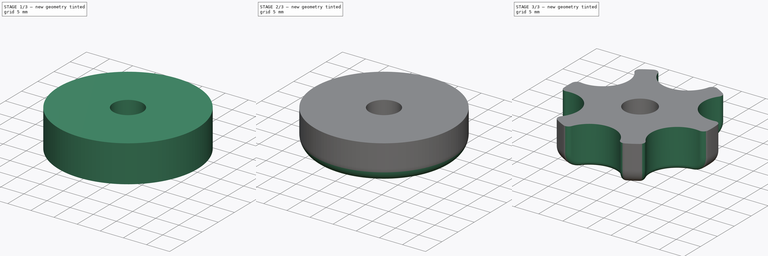
[diagram: build sequence overview — one tinted view per stage of 3, left to right]
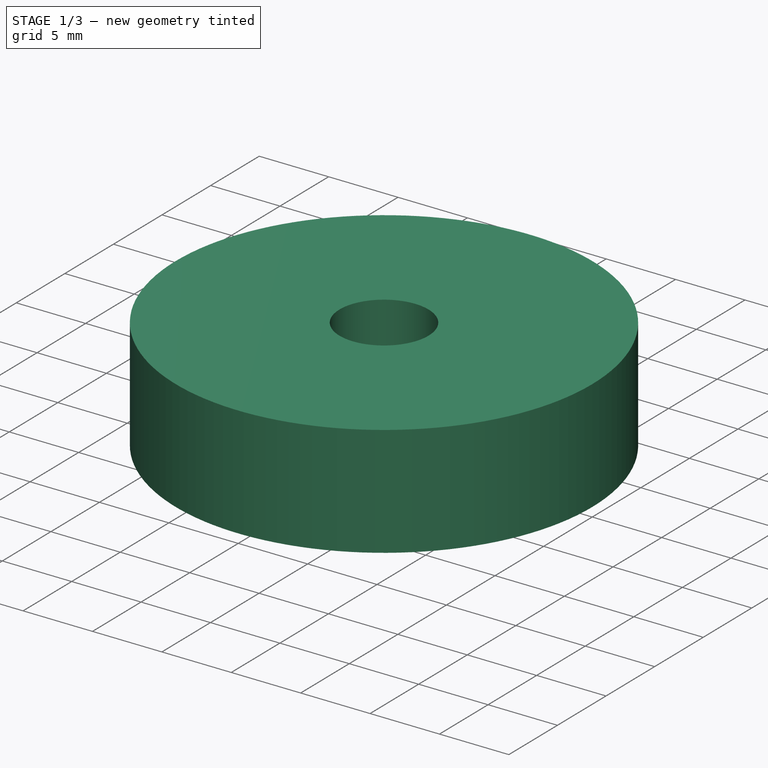
[diagram: stage 1 of 3 — iso view after this stage's code; geometry added in this stage tinted green]
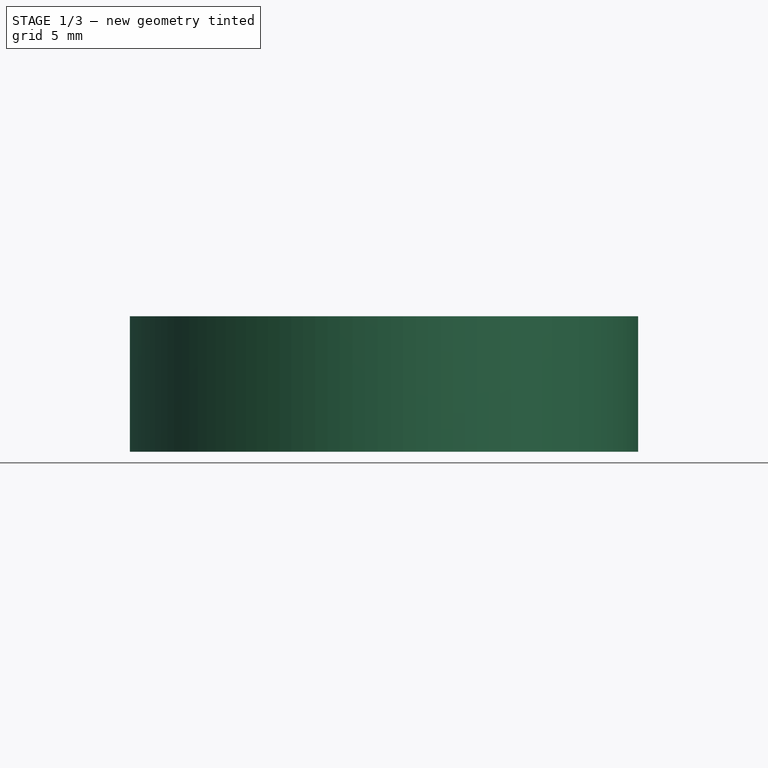
[diagram: stage 1 of 3 — front view after this stage's code; geometry added in this stage tinted green]
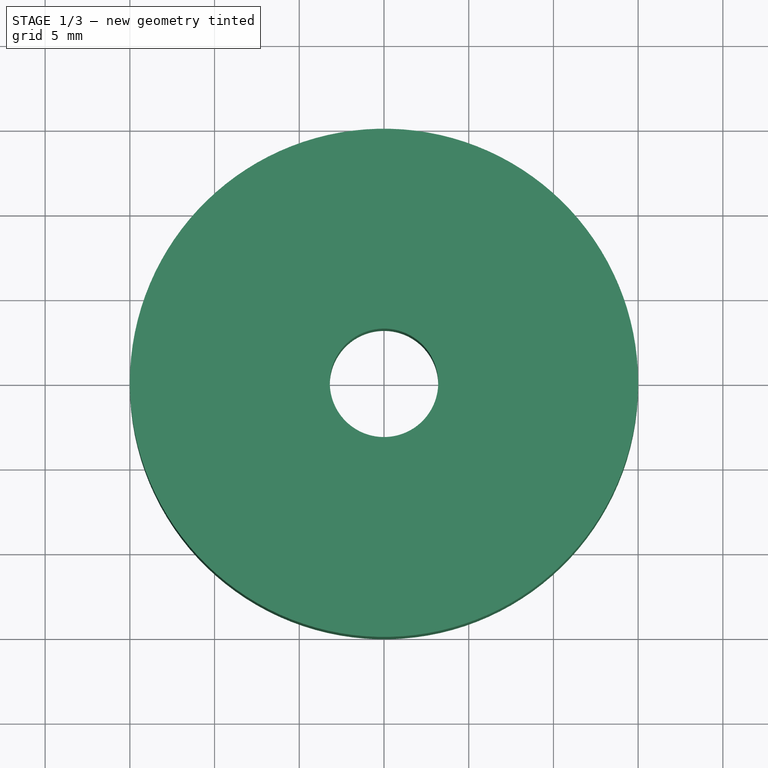
[diagram: stage 1 of 3 — top view after this stage's code; geometry added in this stage tinted green]
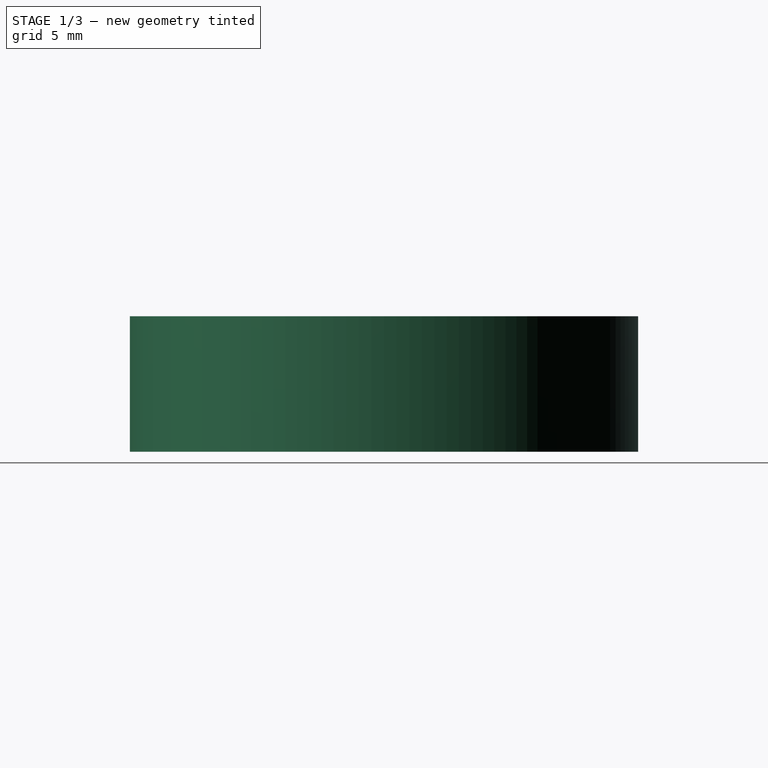
[diagram: stage 1 of 3 — right view after this stage's code; geometry added in this stage tinted green]
FCSTD DOCUMENT  (FreeCAD 0.16R6712 (Git))
Label: Гайка
License: All rights reserved
LicenseURL: http://en.wikipedia.org/wiki/All_rights_reserved
objects: Sketcher::SketchObject×3, PartDesign::Pocket×3, PartDesign::Fillet×2, Part::Cylinder×1
note: 12 computed .brp shape members not serialized (recipe doc carries the construction recipe); baked Part::Feature solids carry a one-line shape summary decoded from their .brp

FEATURE [Part::Cylinder] Cylinder  label="Цилиндр"
  Angle = 360
  Height = 8
  Radius = 15
FEATURE [Sketcher::SketchObject] Sketch
  Placement = pos=(0,0,0) rot=(1,0,0;3.14159rad)
  Support = -> Cylinder [Face3]
  sketch-geometry (1):
    g0: Circle CenterX=0 CenterY=0 CenterZ=0 NormalX=0 NormalY=0 NormalZ=1 Radius=3.2
  constraints (2):
    c: Coincident(g0,g-1)
    c: Radius(g0) = 3.2
FEATURE [PartDesign::Pocket] Pocket
  Length = 6
  Sketch = -> Sketch
  Type = 1
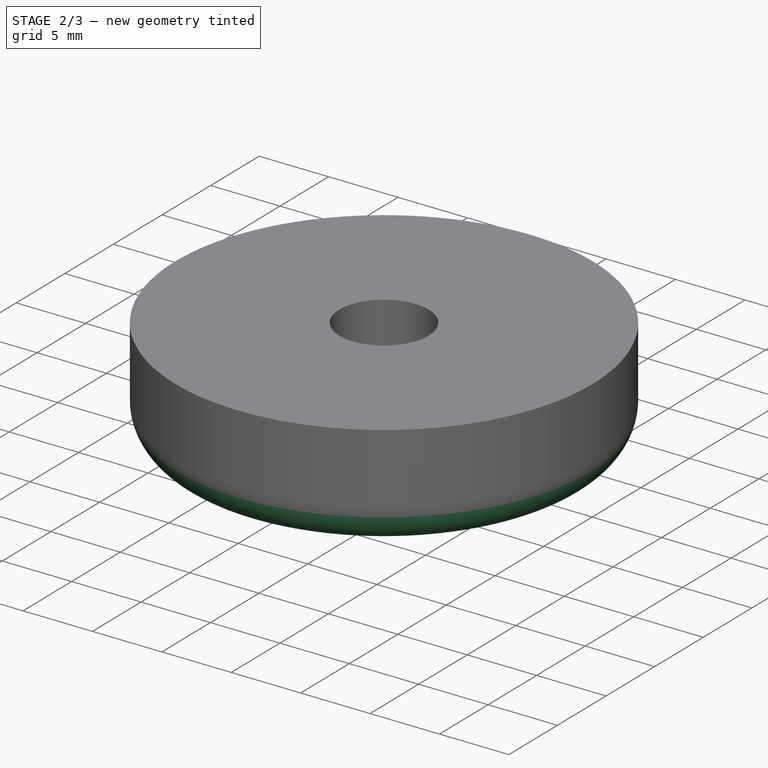
[diagram: stage 2 of 3 — iso view after this stage's code; geometry added in this stage tinted green]
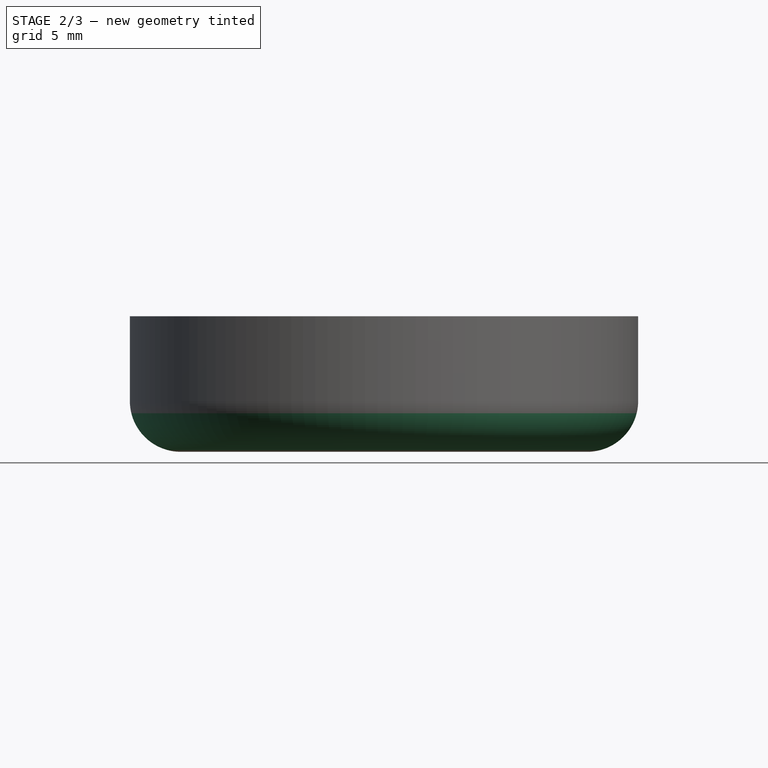
[diagram: stage 2 of 3 — front view after this stage's code; geometry added in this stage tinted green]
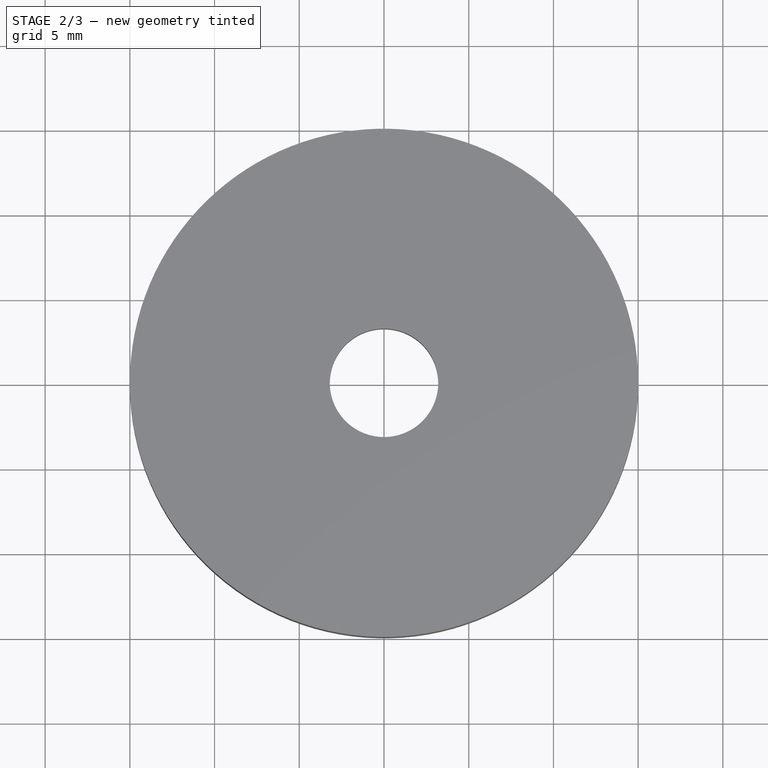
[diagram: stage 2 of 3 — top view after this stage's code; geometry added in this stage tinted green]
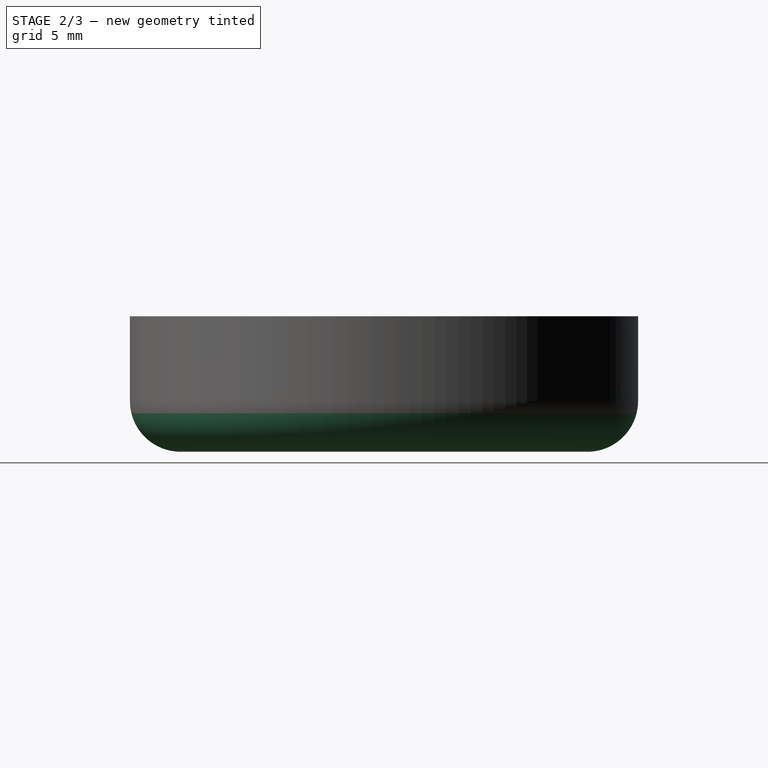
[diagram: stage 2 of 3 — right view after this stage's code; geometry added in this stage tinted green]
FEATURE [PartDesign::Fillet] Fillet
  Base = -> Pocket [Edge3]
  Radius = 3
FEATURE [Sketcher::SketchObject] Sketch001
  Placement = pos=(0,0,0) rot=(1,0,0;3.14159rad)
  Support = -> Fillet [Face4]
  sketch-geometry (7):
    g0: LineSegment StartX=6.35085 StartY=-0.0475035 StartZ=0 EndX=3.21657 EndY=5.47625 EndZ=0
    g1: LineSegment StartX=3.21657 StartY=5.47625 StartZ=0 EndX=-3.13429 EndY=5.52375 EndZ=0
    g2: LineSegment StartX=-3.13429 StartY=5.52375 StartZ=0 EndX=-6.35085 EndY=0.0475035 EndZ=0
    g3: LineSegment StartX=-6.35085 StartY=0.0475035 StartZ=0 EndX=-3.21657 EndY=-5.47625 EndZ=0
    g4: LineSegment StartX=-3.21657 StartY=-5.47625 StartZ=0 EndX=3.13429 EndY=-5.52375 EndZ=0
    g5: LineSegment StartX=3.13429 StartY=-5.52375 StartZ=0 EndX=6.35085 EndY=-0.0475035 EndZ=0
    g6: Circle [constr] CenterX=0 CenterY=0 CenterZ=0 NormalX=0 NormalY=0 NormalZ=1 Radius=6.35103
  constraints (15):
    c: Coincident(g0,g1)
    c: Coincident(g1,g2)
    c: Coincident(g2,g3)
    c: Coincident(g3,g4)
    c: Coincident(g4,g5)
    c: Coincident(g5,g0)
    c: Equal(g0, g1-g5) x5
    c: PointOnObject(g0,g6)
    c: PointOnObject(g1,g6)
    c: PointOnObject(g2,g6)
    c: PointOnObject(g3,g6)
    c: PointOnObject(g4,g6)
    c: PointOnObject(g5,g6)
    c: Coincident(g6,g-1)
    c: DistanceY(g3,g1) = 11
FEATURE [PartDesign::Pocket] Pocket001
  Length = 5
  Sketch = -> Sketch001
  Type = 0
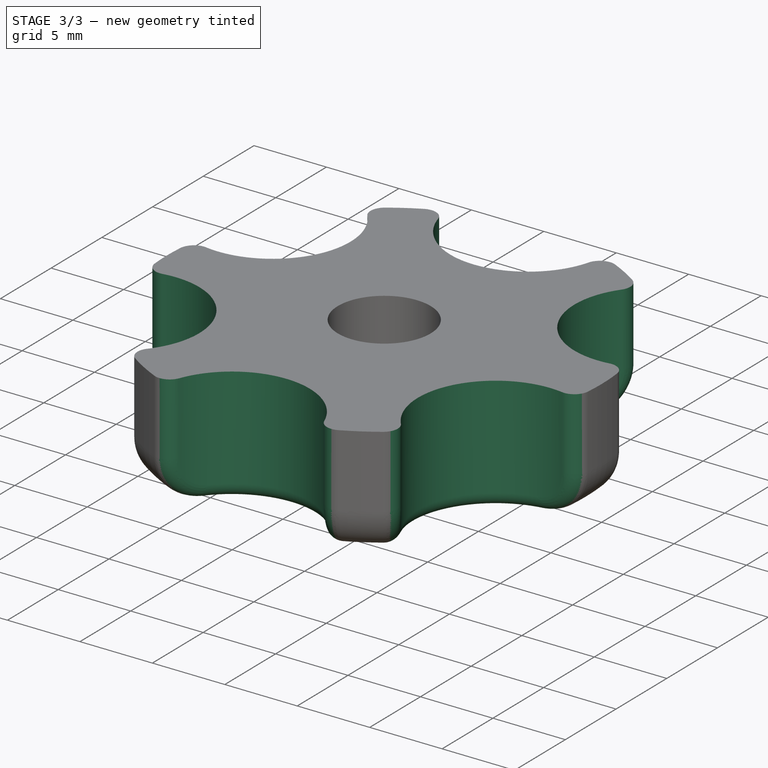
[diagram: stage 3 of 3 — iso view after this stage's code; geometry added in this stage tinted green]
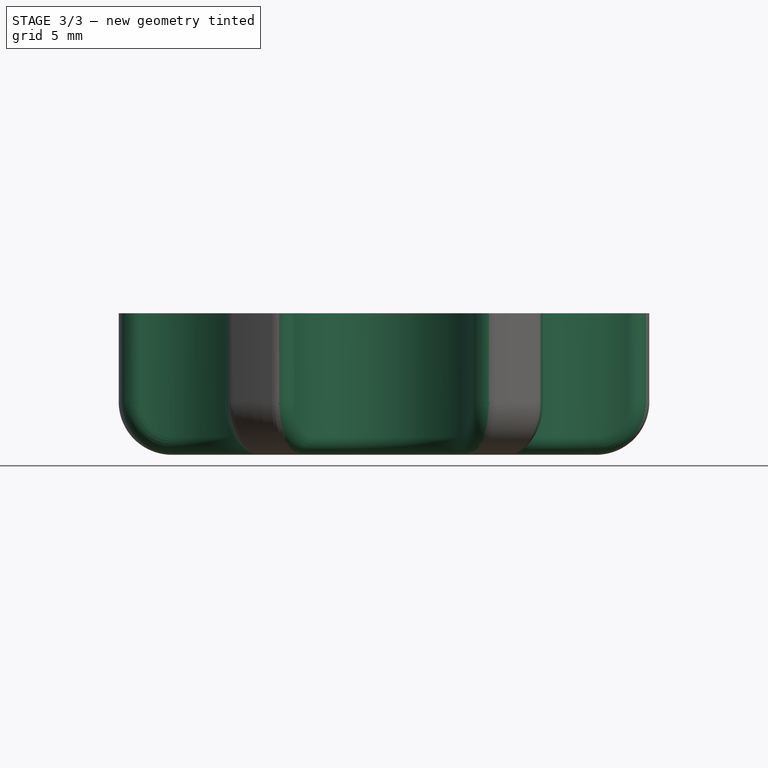
[diagram: stage 3 of 3 — front view after this stage's code; geometry added in this stage tinted green]
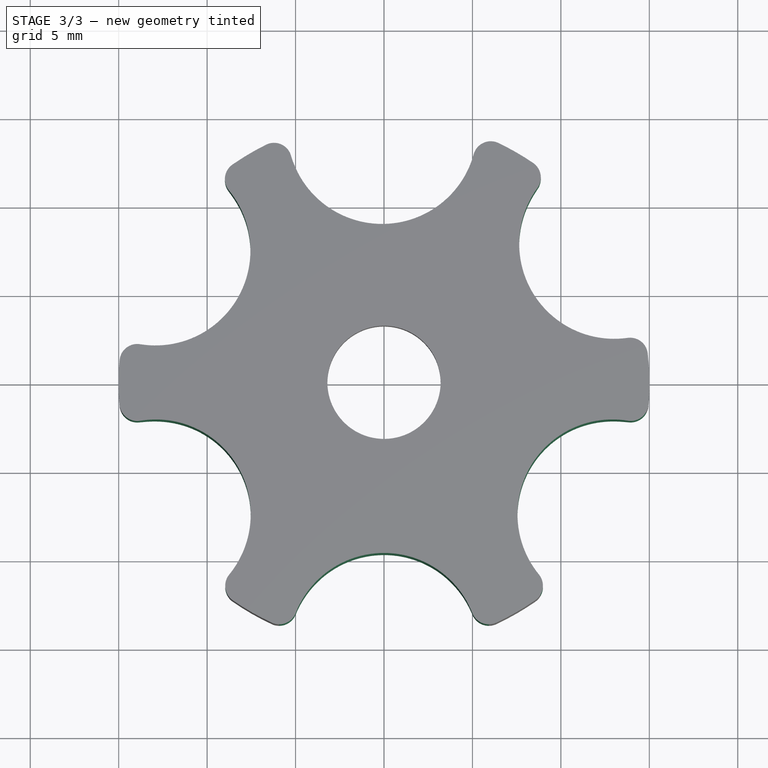
[diagram: stage 3 of 3 — top view after this stage's code; geometry added in this stage tinted green]
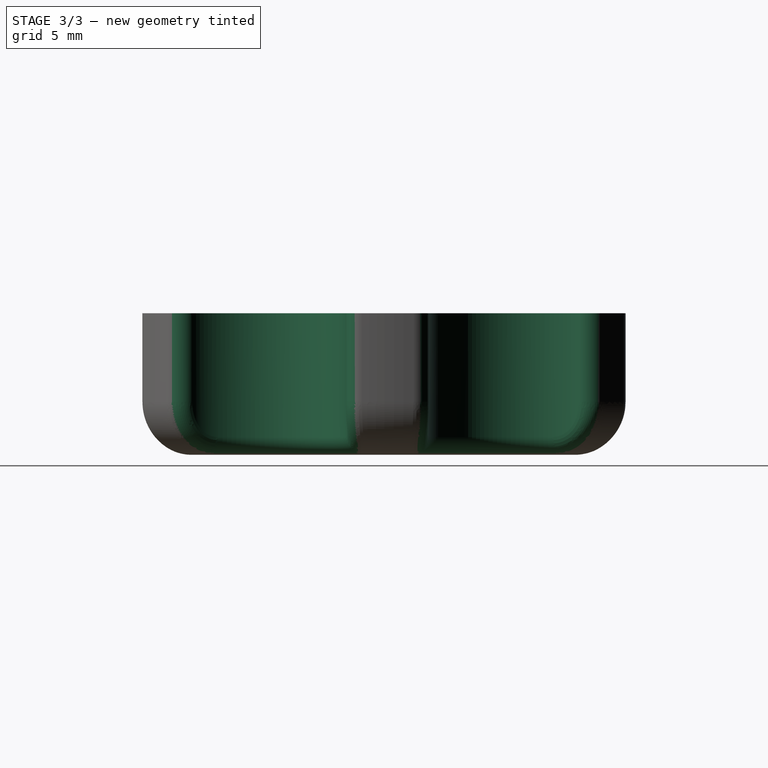
[diagram: stage 3 of 3 — right view after this stage's code; geometry added in this stage tinted green]
FEATURE [Sketcher::SketchObject] Sketch002
  Placement = pos=(0,0,8) rot=(0,0,1;0rad)
  Support = -> Pocket001 [Face3]
  sketch-geometry (6):
    g0: Circle CenterX=0 CenterY=-15.0185 CenterZ=0 NormalX=0 NormalY=0 NormalZ=1 Radius=5.36956
    g1: Circle CenterX=12.9164 CenterY=-7.46876 CenterZ=0 NormalX=0 NormalY=0 NormalZ=1 Radius=5.36956
    g2: Circle CenterX=13.0135 CenterY=7.8284 CenterZ=0 NormalX=0 NormalY=0 NormalZ=1 Radius=5.36956
    g3: Circle CenterX=-12.9058 CenterY=-7.47033 CenterZ=0 NormalX=0 NormalY=0 NormalZ=1 Radius=5.36956
    g4: Circle CenterX=-12.9214 CenterY=7.45324 CenterZ=0 NormalX=0 NormalY=0 NormalZ=1 Radius=5.36956
    g5: Circle CenterX=-0.103775 CenterY=14.3253 CenterZ=0 NormalX=0 NormalY=0 NormalZ=1 Radius=5.36956
  constraints (1):
    c: PointOnObject(g0,g-2)
FEATURE [PartDesign::Pocket] Pocket002
  Length = 5
  Sketch = -> Sketch002
  Type = 1
FEATURE [PartDesign::Fillet] Fillet001
  Base = -> Pocket002 [Edge26,Edge70,Edge67,Edge65,Edge63,Edge59,Edge2,Edge9,Edge49,Edge51,Edge54,Edge57]
  Radius = 1
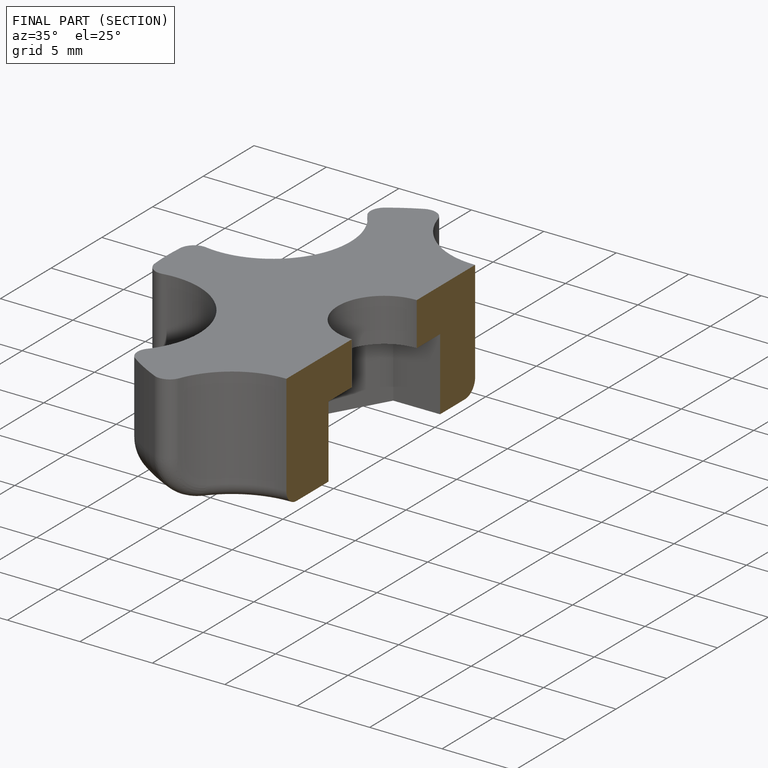
[diagram: finished part — half-section view (interior)]
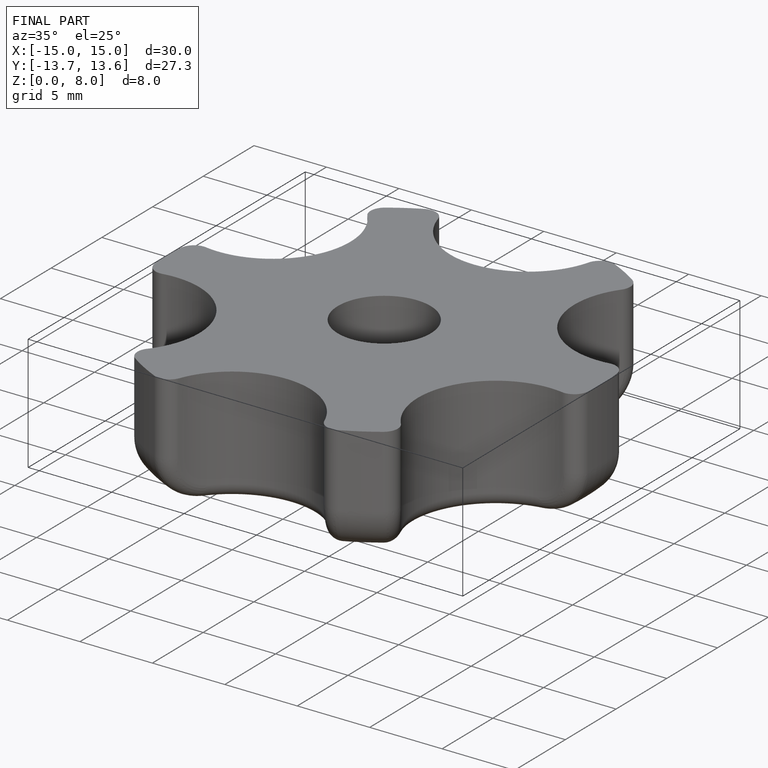
[diagram: finished part — iso view with bounding-box wireframe]
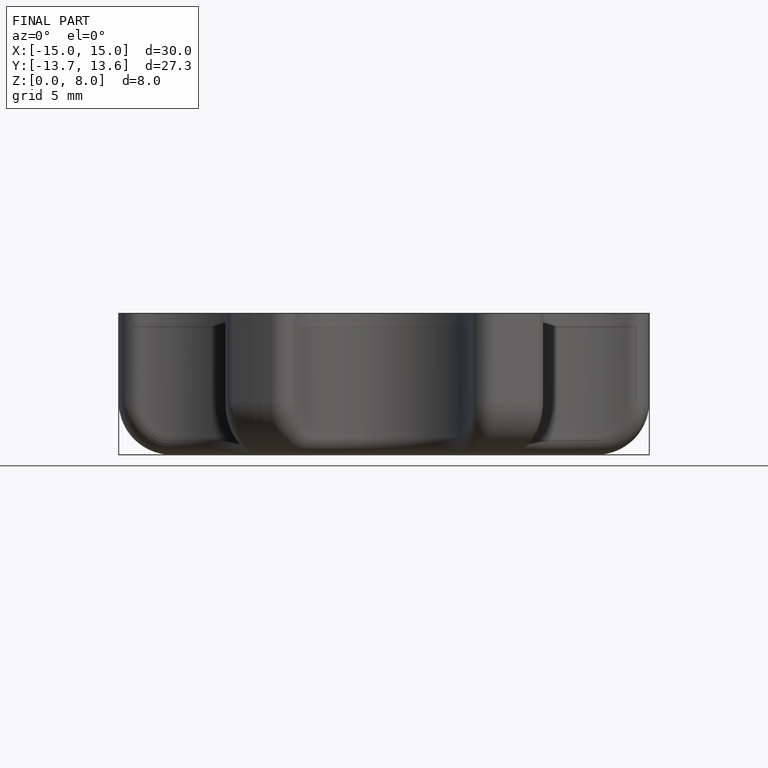
[diagram: finished part — front view with bounding-box wireframe]
